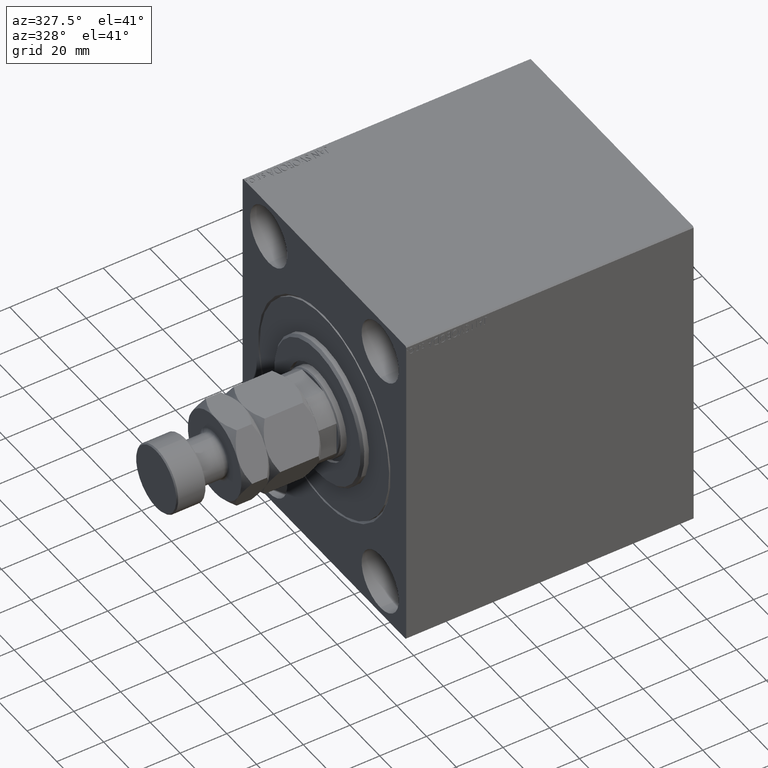
[diagram: clean part render]
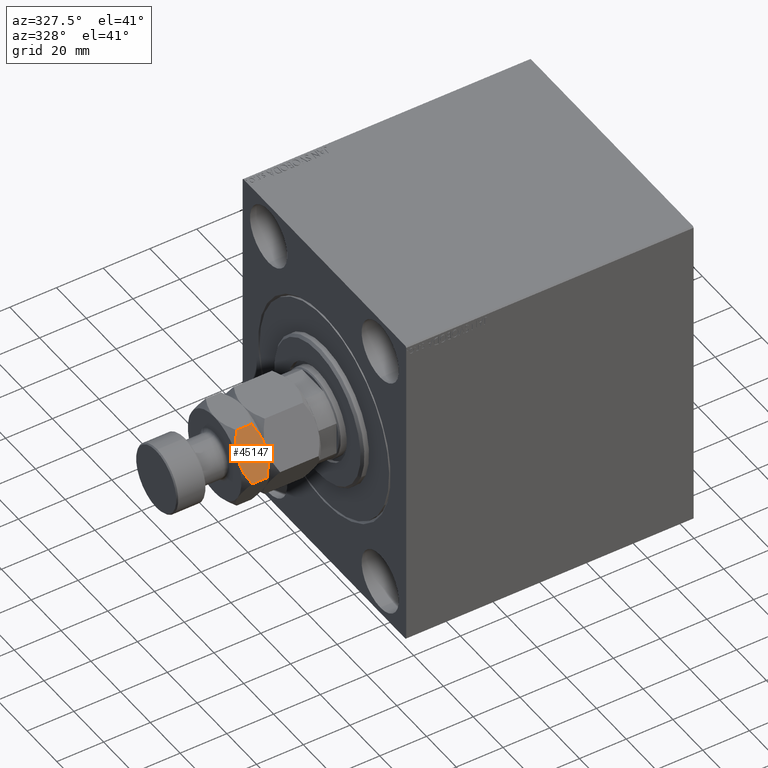
[diagram: same view with one face highlighted and labeled with its STEP entity id]
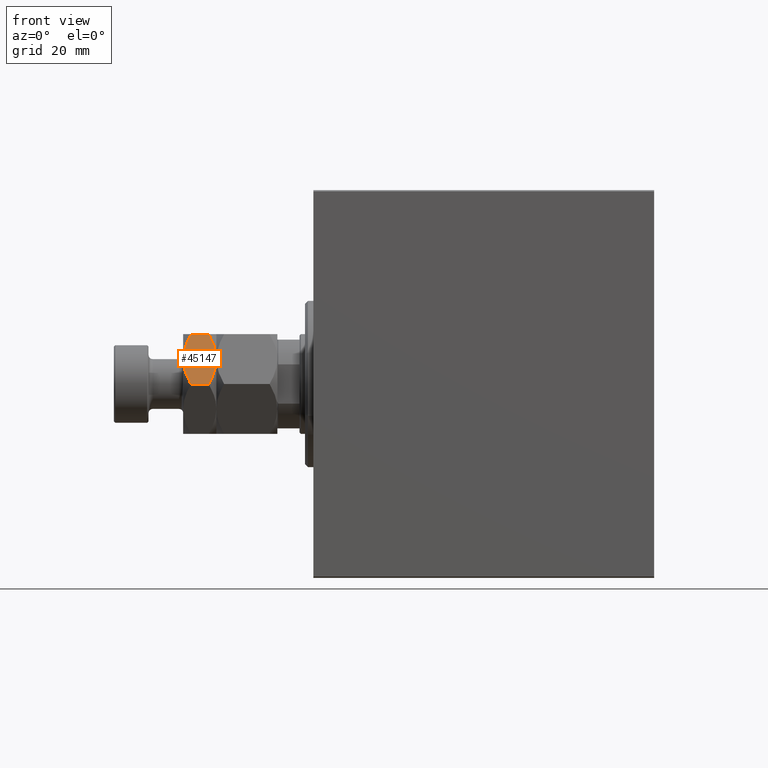
[diagram: same view with one face highlighted and labeled with its STEP entity id]
A machine part, auxiliary view. The second image highlights one B-rep face of the part: STEP entity #45147.
A second angle (front view) of the same face is appended — the face is thin or edge-on in the first view.
In plain terms, the highlighted planar face has unit normal (0, 0.866, -0.5).
Its self-contained STEP definition (entity closure, byte-faithful):
#197 = CARTESIAN_POINT ( 'NONE',  ( 17.99999999999999645, -10.39230484541326227, 24.78460969082651744 ) ) ;
#320 = CARTESIAN_POINT ( 'NONE',  ( 12.14199022028319774, -13.77442836864821807, 22.34056310225527042 ) ) ;
#927 = CARTESIAN_POINT ( 'NONE',  ( 7.415748492146459370, -16.50312530264320543, 33.91305310988183663 ) ) ;
#1474 = CARTESIAN_POINT ( 'NONE',  ( 3.096890948757162212E-15, -20.78460969082652809, 34.00000000000000000 ) ) ;
#2308 = CARTESIAN_POINT ( 'NONE',  ( 3.096890948757162212E-15, -20.78460969082652809, 34.00000000000000000 ) ) ;
#3554 = CARTESIAN_POINT ( 'NONE',  ( 17.99999999999999645, -10.39230484541326227, 24.78460969082651744 ) ) ;
#3643 = CARTESIAN_POINT ( 'NONE',  ( 7.434539168300455358, -16.49227650070744389, 22.00000000000001066 ) ) ;
#4362 = CARTESIAN_POINT ( 'NONE',  ( 16.59030399953601176, -11.20619321075668218, 32.02927867451695221 ) ) ;
#4380 = CARTESIAN_POINT ( 'NONE',  ( 7.023280245922047804, -16.72971695024924443, 33.86127740090142879 ) ) ;
#4946 = EDGE_CURVE ( 'NONE', #16181, #30354, #42537, .T. ) ;
#5153 = DIRECTION ( 'NONE',  ( -0.8660254037844384856, -0.5000000000000003331, 0.000000000000000000 ) ) ;
#6327 = CARTESIAN_POINT ( 'NONE',  ( 5.895697476400520110, -17.38072716576608912, 22.27639590712158935 ) ) ;
#9566 = CARTESIAN_POINT ( 'NONE',  ( 17.99999999999999645, -10.39230484541326227, 31.21539030917348612 ) ) ;
#10066 = CARTESIAN_POINT ( 'NONE',  ( 9.000000000000001776, -15.58845726811988897, 34.00000000000000000 ) ) ;
#10925 = CARTESIAN_POINT ( 'NONE',  ( 10.58425150785353885, -14.67378923359657783, 22.08694689011814916 ) ) ;
#11260 = B_SPLINE_CURVE_WITH_KNOTS ( 'NONE', 3,
 ( #28766, #21864, #42827, #11292, #35896, #4380, #927, #15194, #19091, #29226 ),
 .UNSPECIFIED., .F., .F.,
 ( 4, 2, 2, 2, 4 ),
 ( 2.544307986811667625E-07, 0.005386537354063076002, 0.008079678815695271604, 0.009426249546511372007, 0.01077282027732747241 ),
 .UNSPECIFIED. ) ;
#11292 = CARTESIAN_POINT ( 'NONE',  ( 5.097327296964723864, -17.84166640377631907, 33.46291444417099115 ) ) ;
#11901 = EDGE_CURVE ( 'NONE', #15834, #16181, #35349, .T. ) ;
#14496 = CARTESIAN_POINT ( 'NONE',  ( 12.10430252359948256, -13.79618737047369947, 33.72360409287841065 ) ) ;
#14974 = B_SPLINE_CURVE_WITH_KNOTS ( 'NONE', 3,
 ( #3554, #42902, #28620, #17369, #320, #31400, #10925, #32298, #21488, #21263 ),
 .UNSPECIFIED., .F., .F.,
 ( 4, 2, 2, 2, 4 ),
 ( 2.544307986796311447E-07, 0.005386537354063073400, 0.008079678815695269870, 0.009426249546511368538, 0.01077282027732746894 ),
 .UNSPECIFIED. ) ;
#15194 = CARTESIAN_POINT ( 'NONE',  ( 8.209538469370128766, -16.04483044561309057, 33.98266714352590867 ) ) ;
#15506 = DIRECTION ( 'NONE',  ( -0.5000000000000003331, 0.8660254037844384856, 0.000000000000000000 ) ) ;
#15665 = LINE ( 'NONE', #2308, #16900 ) ;
#15834 = VERTEX_POINT ( 'NONE', #10066 ) ;
#16181 = VERTEX_POINT ( 'NONE', #9566 ) ;
#16418 = FACE_OUTER_BOUND ( 'NONE', #38760, .T. ) ;
#16900 = VECTOR ( 'NONE', #23007, 1000.000000000000000 ) ;
#17369 = CARTESIAN_POINT ( 'NONE',  ( 12.90267270303526814, -13.33524813246347129, 22.53708555582900175 ) ) ;
#18777 = ORIENTED_EDGE ( 'NONE', *, *, #4946, .F. ) ;
#18818 = ORIENTED_EDGE ( 'NONE', *, *, #27686, .F. ) ;
#19073 = CARTESIAN_POINT ( 'NONE',  ( 17.99999999999999645, -10.39230484541326227, 31.21539030917348612 ) ) ;
#19091 = CARTESIAN_POINT ( 'NONE',  ( 8.605874323383773117, -15.81600583360881096, 34.00000000000000000 ) ) ;
#20006 = CARTESIAN_POINT ( 'NONE',  ( 1.116285825713513451E-15, -20.78460969082652809, 24.78460969082652454 ) ) ;
#20944 = EDGE_CURVE ( 'NONE', #30354, #42177, #14974, .T. ) ;
#21118 = DIRECTION ( 'NONE',  ( -0.000000000000000000, -0.000000000000000000, -1.000000000000000000 ) ) ;
#21263 = CARTESIAN_POINT ( 'NONE',  ( 8.999999999999992895, -15.58845726811989252, 22.00000000000000000 ) ) ;
#21488 = CARTESIAN_POINT ( 'NONE',  ( 9.394125676616228660, -15.36090870263096875, 22.00000000000000000 ) ) ;
#21847 = CARTESIAN_POINT ( 'NONE',  ( 10.56546083169953754, -14.68463803553234825, 34.00000000000000000 ) ) ;
#21864 = CARTESIAN_POINT ( 'NONE',  ( 1.411330396252049368, -19.96977770663490404, 32.03022229336509952 ) ) ;
#22640 = CARTESIAN_POINT ( 'NONE',  ( 2.298595589355136900E-15, -20.78460969082652809, 31.21539030917348256 ) ) ;
#22855 = PLANE ( 'NONE',  #44934 ) ;
#22888 = CARTESIAN_POINT ( 'NONE',  ( 8.999999999999992895, -15.58845726811989252, 22.00000000000000000 ) ) ;
#23007 = DIRECTION ( 'NONE',  ( -0.000000000000000000, -0.000000000000000000, -1.000000000000000000 ) ) ;
#23112 = CARTESIAN_POINT ( 'NONE',  ( 1.409696000463986465, -19.97072132548310819, 23.97072132548305845 ) ) ;
#24302 = EDGE_CURVE ( 'NONE', #42177, #43001, #30123, .T. ) ;
#25017 = CARTESIAN_POINT ( 'NONE',  ( 17.99999999999999645, -10.39230484541326227, 34.00000000000000000 ) ) ;
#27686 = EDGE_CURVE ( 'NONE', #36820, #15834, #11260, .T. ) ;
#28620 = CARTESIAN_POINT ( 'NONE',  ( 15.14539811114618395, -12.04041001437222391, 23.27738307788987271 ) ) ;
#28766 = CARTESIAN_POINT ( 'NONE',  ( 2.298595589355136900E-15, -20.78460969082652809, 31.21539030917348256 ) ) ;
#29226 = CARTESIAN_POINT ( 'NONE',  ( 9.000000000000001776, -15.58845726811988897, 34.00000000000000000 ) ) ;
#29759 = ORIENTED_EDGE ( 'NONE', *, *, #20944, .F. ) ;
#30123 = B_SPLINE_CURVE_WITH_KNOTS ( 'NONE', 3,
 ( #22888, #3643, #6327, #33698, #23112, #40619 ),
 .UNSPECIFIED., .F., .F.,
 ( 4, 2, 4 ),
 ( 0.01077282027732746894, 0.01612137750481873466, 0.02146993473231000038 ),
 .UNSPECIFIED. ) ;
#30354 = VERTEX_POINT ( 'NONE', #197 ) ;
#30418 = CARTESIAN_POINT ( 'NONE',  ( 8.999999999999992895, -15.58845726811989252, 22.00000000000000000 ) ) ;
#31060 = ORIENTED_EDGE ( 'NONE', *, *, #43648, .T. ) ;
#31400 = CARTESIAN_POINT ( 'NONE',  ( 10.97671975407794775, -14.44719758599053883, 22.13872259909857121 ) ) ;
#32298 = CARTESIAN_POINT ( 'NONE',  ( 9.790461530629867681, -15.13208409062669269, 22.01733285647409133 ) ) ;
#32427 = CARTESIAN_POINT ( 'NONE',  ( 9.000000000000001776, -15.58845726811988897, 34.00000000000000000 ) ) ;
#33698 = CARTESIAN_POINT ( 'NONE',  ( 2.860715810337963738, -19.13297464765288680, 23.27257470150424368 ) ) ;
#35349 = B_SPLINE_CURVE_WITH_KNOTS ( 'NONE', 3,
 ( #32427, #21847, #14496, #42588, #4362, #19073 ),
 .UNSPECIFIED., .F., .F.,
 ( 4, 2, 4 ),
 ( 0.01077282027732747241, 0.01612137750481873466, 0.02146993473230999344 ),
 .UNSPECIFIED. ) ;
#35896 = CARTESIAN_POINT ( 'NONE',  ( 5.858009779716805809, -17.40248616759157585, 33.65943689774474024 ) ) ;
#36432 = VECTOR ( 'NONE', #21118, 1000.000000000000000 ) ;
#36820 = VERTEX_POINT ( 'NONE', #22640 ) ;
#38760 = EDGE_LOOP ( 'NONE', ( #29759, #18777, #38999, #18818, #31060, #39051 ) ) ;
#38999 = ORIENTED_EDGE ( 'NONE', *, *, #11901, .F. ) ;
#39051 = ORIENTED_EDGE ( 'NONE', *, *, #24302, .F. ) ;
#40619 = CARTESIAN_POINT ( 'NONE',  ( 1.116285825713513451E-15, -20.78460969082652809, 24.78460969082652454 ) ) ;
#42177 = VERTEX_POINT ( 'NONE', #30418 ) ;
#42537 = LINE ( 'NONE', #25017, #36432 ) ;
#42588 = CARTESIAN_POINT ( 'NONE',  ( 15.13928418966203360, -12.04393988858689646, 32.72742529849575277 ) ) ;
#42827 = CARTESIAN_POINT ( 'NONE',  ( 2.854601888853814273, -19.13650452186756112, 32.72261692211013440 ) ) ;
#42902 = CARTESIAN_POINT ( 'NONE',  ( 16.58866960374794530, -11.20713682960488100, 23.96977770663490048 ) ) ;
#43001 = VERTEX_POINT ( 'NONE', #20006 ) ;
#43648 = EDGE_CURVE ( 'NONE', #36820, #43001, #15665, .T. ) ;
#44934 = AXIS2_PLACEMENT_3D ( 'NONE', #1474, #15506, #5153 ) ;
#45147 = ADVANCED_FACE ( 'NONE', ( #16418 ), #22855, .F. ) ;